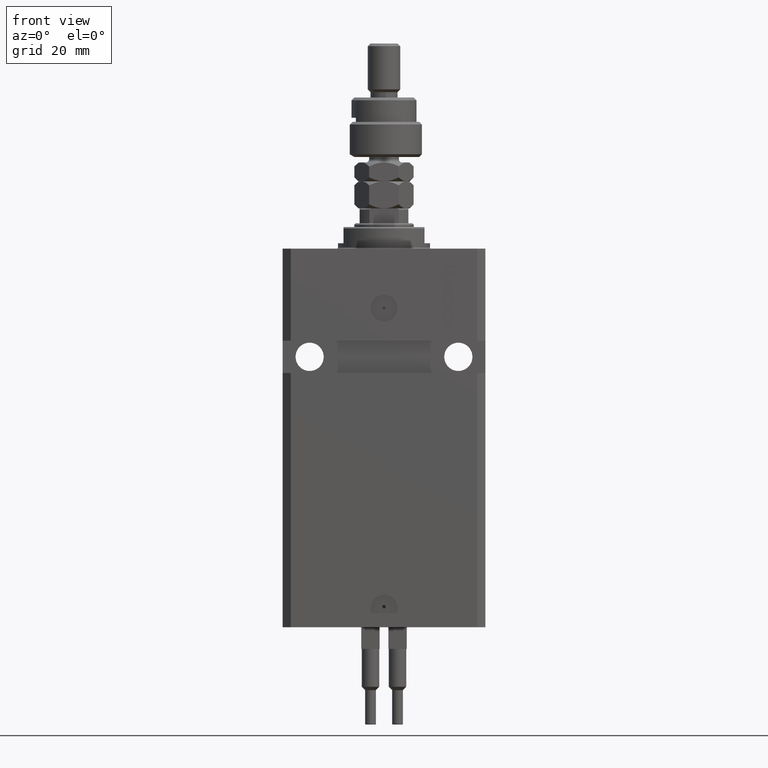
[diagram: clean part render]
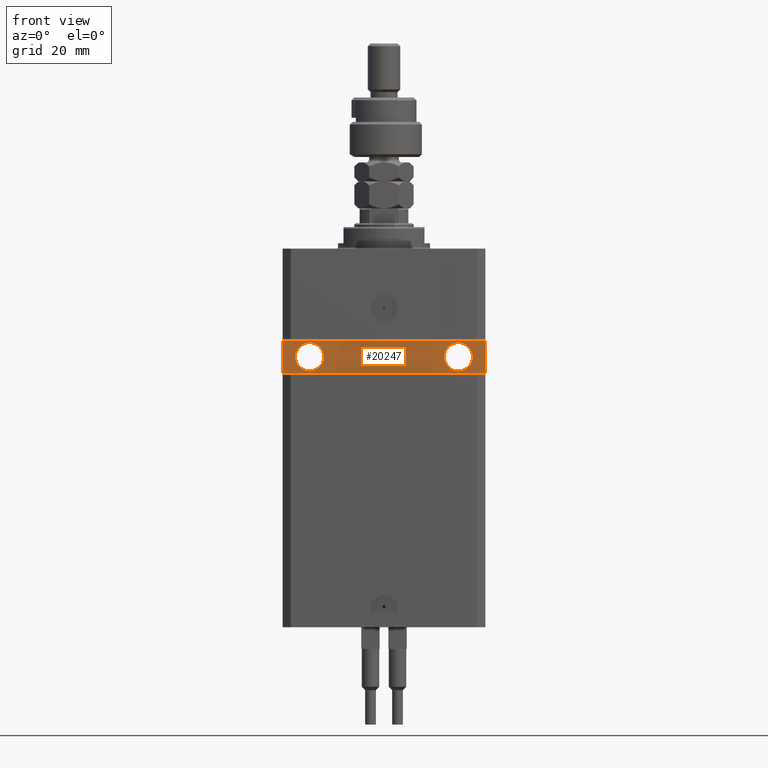
[diagram: same view with one face highlighted and labeled with its STEP entity id]
A machine part, front view. The second image highlights one B-rep face of the part: STEP entity #20247.
In plain terms, the highlighted planar face has unit normal (0, -1, 0).
Its self-contained STEP definition (entity closure, byte-faithful):
#107 = FACE_BOUND ( 'NONE', #50186, .T. ) ;
#2338 = CARTESIAN_POINT ( 'NONE',  ( -27.49999999999999289, -24.50000000000000000, -40.00000000000000711 ) ) ;
#3226 = PLANE ( 'NONE',  #11704 ) ;
#3420 = DIRECTION ( 'NONE',  ( 1.000000000000000000, 0.000000000000000000, 0.000000000000000000 ) ) ;
#3506 = CARTESIAN_POINT ( 'NONE',  ( 37.49999999999999289, -24.49999999999999289, -33.99999999999999289 ) ) ;
#3936 = EDGE_CURVE ( 'NONE', #8983, #48462, #36708, .T. ) ;
#4353 = CIRCLE ( 'NONE', #33177, 5.249999999999997335 ) ;
#5394 = VERTEX_POINT ( 'NONE', #24658 ) ;
#5410 = AXIS2_PLACEMENT_3D ( 'NONE', #48790, #25034, #28145 ) ;
#5886 = CARTESIAN_POINT ( 'NONE',  ( -37.50000000000000000, -24.50000000000000000, -34.00000000000000000 ) ) ;
#6409 = LINE ( 'NONE', #5886, #10633 ) ;
#6838 = CARTESIAN_POINT ( 'NONE',  ( 37.49999999999999289, -24.49999999999999289, -33.99999999999999289 ) ) ;
#6979 = CARTESIAN_POINT ( 'NONE',  ( 32.75000000000000000, -24.49999999999999289, -40.00000000000000000 ) ) ;
#7902 = ORIENTED_EDGE ( 'NONE', *, *, #26341, .F. ) ;
#8983 = VERTEX_POINT ( 'NONE', #47972 ) ;
#10091 = CARTESIAN_POINT ( 'NONE',  ( -27.49999999999999289, -24.50000000000000000, -40.00000000000000711 ) ) ;
#10178 = VECTOR ( 'NONE', #27310, 1000.000000000000000 ) ;
#10633 = VECTOR ( 'NONE', #21606, 1000.000000000000000 ) ;
#10685 = DIRECTION ( 'NONE',  ( 1.171720209325604191E-16, -1.000000000000000000, 0.000000000000000000 ) ) ;
#11210 = VERTEX_POINT ( 'NONE', #39667 ) ;
#11446 = ORIENTED_EDGE ( 'NONE', *, *, #32239, .F. ) ;
#11482 = FACE_OUTER_BOUND ( 'NONE', #35303, .T. ) ;
#11582 = ORIENTED_EDGE ( 'NONE', *, *, #40585, .T. ) ;
#11704 = AXIS2_PLACEMENT_3D ( 'NONE', #46303, #27190, #34681 ) ;
#12101 = ORIENTED_EDGE ( 'NONE', *, *, #3936, .F. ) ;
#12516 = CIRCLE ( 'NONE', #47106, 5.249999999999997335 ) ;
#12883 = CARTESIAN_POINT ( 'NONE',  ( -37.50000000000000000, -24.50000000000000000, -46.00000000000000000 ) ) ;
#13603 = EDGE_CURVE ( 'NONE', #25791, #37836, #6409, .T. ) ;
#15714 = LINE ( 'NONE', #46910, #10178 ) ;
#18712 = VERTEX_POINT ( 'NONE', #3506 ) ;
#20247 = ADVANCED_FACE ( 'NONE', ( #38558, #107, #11482 ), #3226, .T. ) ;
#20623 = EDGE_CURVE ( 'NONE', #39909, #5394, #12516, .T. ) ;
#21217 = LINE ( 'NONE', #32564, #48023 ) ;
#21606 = DIRECTION ( 'NONE',  ( 0.000000000000000000, 0.000000000000000000, -1.000000000000000000 ) ) ;
#21961 = ORIENTED_EDGE ( 'NONE', *, *, #13603, .T. ) ;
#22219 = ORIENTED_EDGE ( 'NONE', *, *, #20623, .F. ) ;
#22587 = AXIS2_PLACEMENT_3D ( 'NONE', #38507, #10685, #3420 ) ;
#24658 = CARTESIAN_POINT ( 'NONE',  ( -22.24999999999999645, -24.50000000000000000, -40.00000000000000711 ) ) ;
#25034 = DIRECTION ( 'NONE',  ( 1.171720209325604191E-16, -1.000000000000000000, 0.000000000000000000 ) ) ;
#25273 = DIRECTION ( 'NONE',  ( 1.000000000000000000, 0.000000000000000000, 0.000000000000000000 ) ) ;
#25783 = DIRECTION ( 'NONE',  ( 1.101411730780568590E-16, -1.000000000000000000, 0.000000000000000000 ) ) ;
#25791 = VERTEX_POINT ( 'NONE', #34097 ) ;
#26078 = VECTOR ( 'NONE', #46279, 1000.000000000000000 ) ;
#26341 = EDGE_CURVE ( 'NONE', #5394, #39909, #4353, .T. ) ;
#26423 = EDGE_CURVE ( 'NONE', #11210, #18712, #15714, .T. ) ;
#27190 = DIRECTION ( 'NONE',  ( 9.251858538542972814E-17, -1.000000000000000000, 0.000000000000000000 ) ) ;
#27310 = DIRECTION ( 'NONE',  ( 0.000000000000000000, 0.000000000000000000, 1.000000000000000000 ) ) ;
#28145 = DIRECTION ( 'NONE',  ( 1.000000000000000000, 0.000000000000000000, 0.000000000000000000 ) ) ;
#29286 = EDGE_CURVE ( 'NONE', #37836, #11210, #21217, .T. ) ;
#32239 = EDGE_CURVE ( 'NONE', #48462, #8983, #39080, .T. ) ;
#32564 = CARTESIAN_POINT ( 'NONE',  ( -37.50000000000000000, -24.50000000000000000, -46.00000000000000000 ) ) ;
#33177 = AXIS2_PLACEMENT_3D ( 'NONE', #10091, #25783, #41531 ) ;
#33544 = DIRECTION ( 'NONE',  ( 1.101411730780568590E-16, -1.000000000000000000, 0.000000000000000000 ) ) ;
#34097 = CARTESIAN_POINT ( 'NONE',  ( -37.50000000000000000, -24.50000000000000000, -34.00000000000000000 ) ) ;
#34681 = DIRECTION ( 'NONE',  ( 1.000000000000000000, 9.251858538542972814E-17, 0.000000000000000000 ) ) ;
#35125 = EDGE_LOOP ( 'NONE', ( #11446, #12101 ) ) ;
#35303 = EDGE_LOOP ( 'NONE', ( #44881, #44669, #11582, #21961 ) ) ;
#36181 = DIRECTION ( 'NONE',  ( 1.000000000000000000, 9.251858538542972814E-17, 9.251858538542972814E-17 ) ) ;
#36708 = CIRCLE ( 'NONE', #5410, 5.249999999999994671 ) ;
#37836 = VERTEX_POINT ( 'NONE', #12883 ) ;
#38507 = CARTESIAN_POINT ( 'NONE',  ( 27.50000000000000711, -24.49999999999999289, -40.00000000000000000 ) ) ;
#38558 = FACE_BOUND ( 'NONE', #35125, .T. ) ;
#39080 = CIRCLE ( 'NONE', #22587, 5.249999999999994671 ) ;
#39667 = CARTESIAN_POINT ( 'NONE',  ( 37.49999999999999289, -24.49999999999999289, -45.99999999999999289 ) ) ;
#39909 = VERTEX_POINT ( 'NONE', #48405 ) ;
#40585 = EDGE_CURVE ( 'NONE', #18712, #25791, #41196, .T. ) ;
#41196 = LINE ( 'NONE', #6838, #26078 ) ;
#41531 = DIRECTION ( 'NONE',  ( 1.000000000000000000, 0.000000000000000000, 0.000000000000000000 ) ) ;
#44669 = ORIENTED_EDGE ( 'NONE', *, *, #26423, .T. ) ;
#44881 = ORIENTED_EDGE ( 'NONE', *, *, #29286, .T. ) ;
#46279 = DIRECTION ( 'NONE',  ( -1.000000000000000000, -9.251858538542972814E-17, -9.251858538542972814E-17 ) ) ;
#46303 = CARTESIAN_POINT ( 'NONE',  ( 2.191435984341280931E-15, -24.49999999999999645, 0.000000000000000000 ) ) ;
#46910 = CARTESIAN_POINT ( 'NONE',  ( 37.49999999999999289, -24.49999999999999289, -45.99999999999999289 ) ) ;
#47106 = AXIS2_PLACEMENT_3D ( 'NONE', #2338, #33544, #25273 ) ;
#47972 = CARTESIAN_POINT ( 'NONE',  ( 22.25000000000001421, -24.49999999999999289, -40.00000000000000000 ) ) ;
#48023 = VECTOR ( 'NONE', #36181, 1000.000000000000000 ) ;
#48405 = CARTESIAN_POINT ( 'NONE',  ( -32.74999999999999289, -24.50000000000000000, -40.00000000000000711 ) ) ;
#48462 = VERTEX_POINT ( 'NONE', #6979 ) ;
#48790 = CARTESIAN_POINT ( 'NONE',  ( 27.50000000000000711, -24.49999999999999289, -40.00000000000000000 ) ) ;
#50186 = EDGE_LOOP ( 'NONE', ( #7902, #22219 ) ) ;